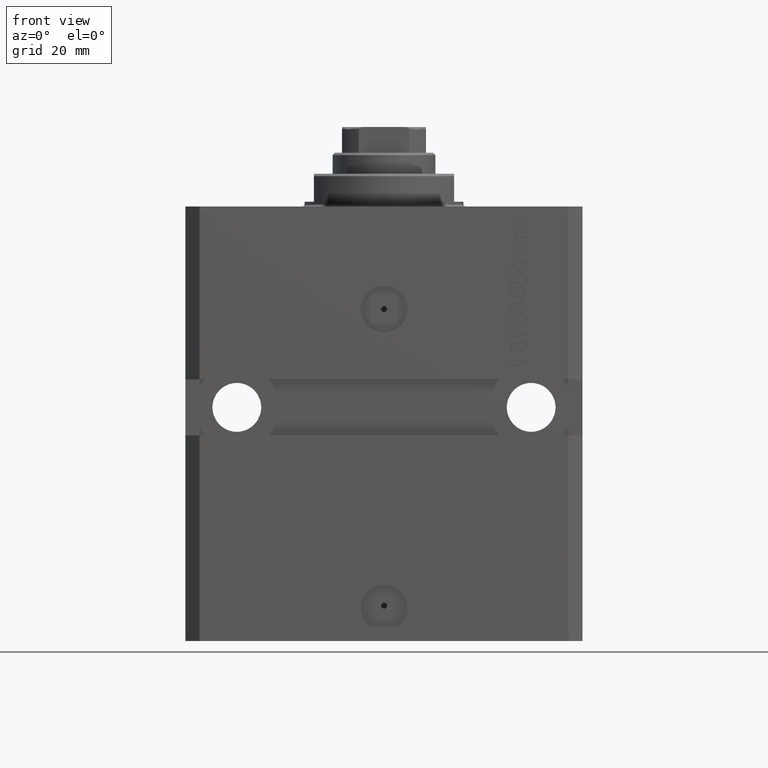
[diagram: clean part render]
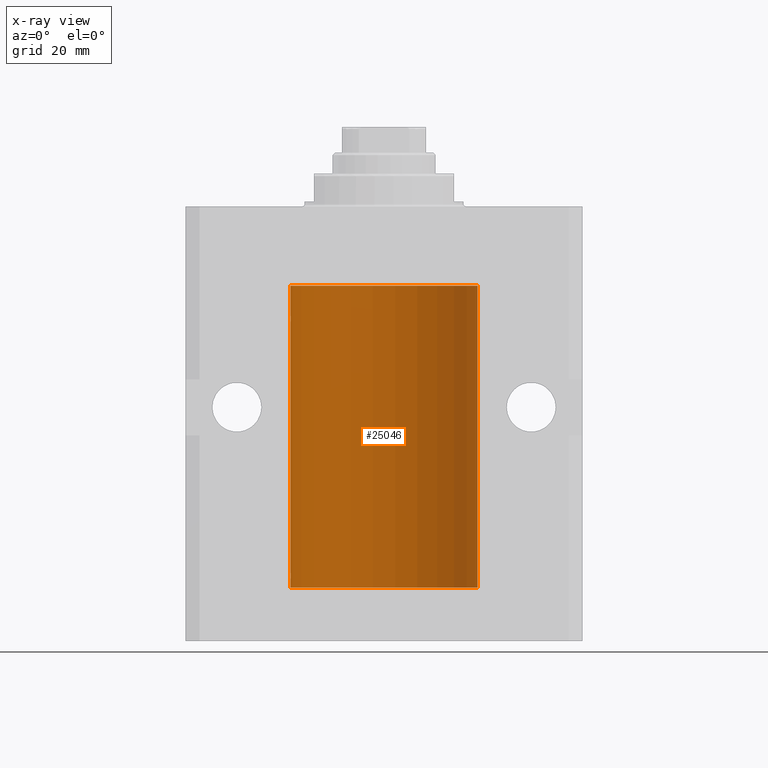
[diagram: x-ray — body ghosted, one internal face saturated and labeled with its STEP entity id]
A machine part, front view, then the same camera in x-ray: the body is ghosted and one INTERNAL B-rep face — a face not visible from any outside direction — is saturated and labeled: STEP entity #25046.
In plain terms, the highlighted cylindrical surface (partial cylindrical patch) has radius 20 mm, axis along (0, 0, 1).
Its self-contained STEP definition (entity closure, byte-faithful):
#710 = CARTESIAN_POINT ( 'NONE',  ( -20.00000000000000000, 2.449293598294706513E-15, -81.59999999999999432 ) ) ;
#1161 = CARTESIAN_POINT ( 'NONE',  ( -20.00000000000000355, 0.1631688615953343080, -79.62499999999984368 ) ) ;
#1390 = CARTESIAN_POINT ( 'NONE',  ( -19.99023018003212471, 0.6250578794725522025, -79.16284809704971792 ) ) ;
#2644 = ORIENTED_EDGE ( 'NONE', *, *, #33842, .T. ) ;
#3471 = AXIS2_PLACEMENT_3D ( 'NONE', #38524, #45975, #41667 ) ;
#3702 = CARTESIAN_POINT ( 'NONE',  ( -19.99766197842594906, 0.3150331617867667688, -23.45402070102505476 ) ) ;
#4075 = ORIENTED_EDGE ( 'NONE', *, *, #37678, .T. ) ;
#4537 = B_SPLINE_CURVE_WITH_KNOTS ( 'NONE', 3,
 ( #14771, #28986, #32116, #3702, #40510, #18157, #47028, #10215, #11146, #43662, #13828, #28756 ),
 .UNSPECIFIED., .F., .F.,
 ( 4, 2, 2, 2, 2, 4 ),
 ( 5.848927291235706941E-19, 0.0002442693137305304075, 0.0004885386274610601645, 0.0009770772549221123059, 0.001465615882383164339, 0.001954154509844215938 ),
 .UNSPECIFIED. ) ;
#4704 = CARTESIAN_POINT ( 'NONE',  ( 0.000000000000000000, 0.000000000000000000, -81.59999999999999432 ) ) ;
#4711 = ORIENTED_EDGE ( 'NONE', *, *, #10895, .F. ) ;
#4772 = VERTEX_POINT ( 'NONE', #35575 ) ;
#6116 = DIRECTION ( 'NONE',  ( 1.000000000000000000, 0.000000000000000000, 0.000000000000000000 ) ) ;
#7806 = CARTESIAN_POINT ( 'NONE',  ( -20.00000000000010303, 3.580159286679549072E-13, -79.62500000000332534 ) ) ;
#8925 = EDGE_CURVE ( 'NONE', #31922, #15326, #24655, .T. ) ;
#9018 = CYLINDRICAL_SURFACE ( 'NONE', #46293, 20.00000000000000000 ) ;
#9477 = DIRECTION ( 'NONE',  ( -0.000000000000000000, -0.000000000000000000, 1.000000000000000000 ) ) ;
#10215 = CARTESIAN_POINT ( 'NONE',  ( -19.99023018003212471, 0.6250578794725500931, -24.16284809704970371 ) ) ;
#10895 = EDGE_CURVE ( 'NONE', #33418, #22992, #20806, .T. ) ;
#11146 = CARTESIAN_POINT ( 'NONE',  ( -19.99253506710754991, 0.5587120480776751608, -24.32511620830248589 ) ) ;
#11343 = CARTESIAN_POINT ( 'NONE',  ( 20.00000000000000000, 0.000000000000000000, -81.59999999999999432 ) ) ;
#11390 = B_SPLINE_CURVE_WITH_KNOTS ( 'NONE', 3,
 ( #11489, #26190, #26661, #18963, #34349, #19441, #41327, #1390, #33642, #44947, #1161, #30730 ),
 .UNSPECIFIED., .F., .F.,
 ( 4, 2, 2, 2, 2, 4 ),
 ( 1.522880481566060999E-18, 0.0002442693137305179392, 0.0004885386274610343605, 0.0009770772549220966934, 0.001465615882383158918, 0.001954154509844221576 ),
 .UNSPECIFIED. ) ;
#11489 = CARTESIAN_POINT ( 'NONE',  ( -20.00000000000000000, -1.124177324826063808E-14, -78.37500000000000000 ) ) ;
#11925 = DIRECTION ( 'NONE',  ( 1.000000000000000000, 0.000000000000000000, 0.000000000000000000 ) ) ;
#13285 = VECTOR ( 'NONE', #24258, 1000.000000000000000 ) ;
#13518 = CARTESIAN_POINT ( 'NONE',  ( -20.00000000000000000, 2.449293598294706513E-15, -81.59999999999999432 ) ) ;
#13828 = CARTESIAN_POINT ( 'NONE',  ( -20.00000000000000000, 0.1631688615953320320, -24.62499999999985434 ) ) ;
#14438 = ORIENTED_EDGE ( 'NONE', *, *, #32610, .T. ) ;
#14542 = VERTEX_POINT ( 'NONE', #26488 ) ;
#14771 = CARTESIAN_POINT ( 'NONE',  ( -20.00000000000000000, -2.867584836844214272E-15, -23.37500000000000000 ) ) ;
#15326 = VERTEX_POINT ( 'NONE', #22401 ) ;
#15447 = VECTOR ( 'NONE', #9477, 1000.000000000000000 ) ;
#15763 = ORIENTED_EDGE ( 'NONE', *, *, #22475, .F. ) ;
#15813 = VERTEX_POINT ( 'NONE', #30642 ) ;
#17819 = VERTEX_POINT ( 'NONE', #31675 ) ;
#18157 = CARTESIAN_POINT ( 'NONE',  ( -19.99256581701871482, 0.5573276956902001311, -23.67348565770948809 ) ) ;
#18963 = CARTESIAN_POINT ( 'NONE',  ( -19.99766197842594551, 0.3150331617867603295, -78.45402070102504410 ) ) ;
#19441 = CARTESIAN_POINT ( 'NONE',  ( -19.99256581701871838, 0.5573276956901996870, -78.67348565770949165 ) ) ;
#20326 = CARTESIAN_POINT ( 'NONE',  ( -20.00000000000000000, 2.449293598294706513E-15, -81.59999999999999432 ) ) ;
#20806 = LINE ( 'NONE', #20326, #15447 ) ;
#21406 = EDGE_CURVE ( 'NONE', #4772, #15813, #41593, .T. ) ;
#22401 = CARTESIAN_POINT ( 'NONE',  ( -20.00000000000000000, 2.449293598294706513E-15, -17.00000000000000000 ) ) ;
#22475 = EDGE_CURVE ( 'NONE', #17819, #15326, #31955, .T. ) ;
#22587 = ORIENTED_EDGE ( 'NONE', *, *, #8925, .T. ) ;
#22992 = VERTEX_POINT ( 'NONE', #7806 ) ;
#23244 = FACE_OUTER_BOUND ( 'NONE', #34838, .T. ) ;
#23510 = CARTESIAN_POINT ( 'NONE',  ( 20.00000000000000000, 0.000000000000000000, -17.00000000000000000 ) ) ;
#23939 = CARTESIAN_POINT ( 'NONE',  ( 0.000000000000000000, 0.000000000000000000, -17.00000000000000000 ) ) ;
#24199 = CIRCLE ( 'NONE', #3471, 20.00000000000000000 ) ;
#24258 = DIRECTION ( 'NONE',  ( -0.000000000000000000, -0.000000000000000000, 1.000000000000000000 ) ) ;
#24655 = CIRCLE ( 'NONE', #45390, 20.00000000000000000 ) ;
#25046 = ADVANCED_FACE ( 'NONE', ( #23244 ), #9018, .F. ) ;
#25170 = VECTOR ( 'NONE', #33263, 1000.000000000000000 ) ;
#26044 = LINE ( 'NONE', #11343, #25170 ) ;
#26190 = CARTESIAN_POINT ( 'NONE',  ( -19.99999999999999289, 0.08259581631026131909, -78.37499999999998579 ) ) ;
#26488 = CARTESIAN_POINT ( 'NONE',  ( 20.00000000000000000, 0.000000000000000000, -81.59999999999999432 ) ) ;
#26661 = CARTESIAN_POINT ( 'NONE',  ( -19.99947377218718003, 0.1636439183262797525, -78.39126364004653169 ) ) ;
#27469 = ORIENTED_EDGE ( 'NONE', *, *, #21406, .F. ) ;
#28756 = CARTESIAN_POINT ( 'NONE',  ( -20.00000000000010303, 3.580159278407742946E-13, -24.62500000000332889 ) ) ;
#28986 = CARTESIAN_POINT ( 'NONE',  ( -19.99999999999999645, 0.08259581631026780002, -23.37500000000000000 ) ) ;
#30642 = CARTESIAN_POINT ( 'NONE',  ( -20.00000000000010303, 3.580159278407742946E-13, -24.62500000000332889 ) ) ;
#30730 = CARTESIAN_POINT ( 'NONE',  ( -20.00000000000010303, 3.580159286679549072E-13, -79.62500000000332534 ) ) ;
#31280 = EDGE_CURVE ( 'NONE', #14542, #33418, #24199, .T. ) ;
#31634 = DIRECTION ( 'NONE',  ( 0.000000000000000000, 0.000000000000000000, 1.000000000000000000 ) ) ;
#31675 = CARTESIAN_POINT ( 'NONE',  ( -20.00000000000000000, -2.867584836844214272E-15, -23.37500000000000000 ) ) ;
#31922 = VERTEX_POINT ( 'NONE', #23510 ) ;
#31955 = LINE ( 'NONE', #42313, #13285 ) ;
#32116 = CARTESIAN_POINT ( 'NONE',  ( -19.99947377218718714, 0.1636439183262877461, -23.39126364004656011 ) ) ;
#32610 = EDGE_CURVE ( 'NONE', #4772, #22992, #11390, .T. ) ;
#33263 = DIRECTION ( 'NONE',  ( -0.000000000000000000, -0.000000000000000000, 1.000000000000000000 ) ) ;
#33418 = VERTEX_POINT ( 'NONE', #13518 ) ;
#33642 = CARTESIAN_POINT ( 'NONE',  ( -19.99253506710754991, 0.5587120480776742726, -79.32511620830248944 ) ) ;
#33842 = EDGE_CURVE ( 'NONE', #17819, #15813, #4537, .T. ) ;
#34349 = CARTESIAN_POINT ( 'NONE',  ( -19.99638934703457238, 0.3843678041337651452, -78.50046362978099523 ) ) ;
#34838 = EDGE_LOOP ( 'NONE', ( #4711, #38903, #4075, #22587, #15763, #2644, #27469, #14438 ) ) ;
#35575 = CARTESIAN_POINT ( 'NONE',  ( -20.00000000000000000, -1.124177324826063808E-14, -78.37500000000000000 ) ) ;
#37678 = EDGE_CURVE ( 'NONE', #14542, #31922, #26044, .T. ) ;
#37984 = DIRECTION ( 'NONE',  ( -0.000000000000000000, -0.000000000000000000, 1.000000000000000000 ) ) ;
#38524 = CARTESIAN_POINT ( 'NONE',  ( 0.000000000000000000, 0.000000000000000000, -81.59999999999999432 ) ) ;
#38903 = ORIENTED_EDGE ( 'NONE', *, *, #31280, .F. ) ;
#40510 = CARTESIAN_POINT ( 'NONE',  ( -19.99638934703457593, 0.3843678041337688644, -23.50046362978100944 ) ) ;
#41327 = CARTESIAN_POINT ( 'NONE',  ( -19.99023380173166231, 0.6249420416828449509, -78.83670793056396064 ) ) ;
#41593 = LINE ( 'NONE', #710, #44754 ) ;
#41667 = DIRECTION ( 'NONE',  ( 1.000000000000000000, 0.000000000000000000, 0.000000000000000000 ) ) ;
#42313 = CARTESIAN_POINT ( 'NONE',  ( -20.00000000000000000, 2.449293598294706513E-15, -81.59999999999999432 ) ) ;
#43662 = CARTESIAN_POINT ( 'NONE',  ( -19.99769349528941120, 0.3253804398728645242, -24.55855820727680339 ) ) ;
#44754 = VECTOR ( 'NONE', #37984, 1000.000000000000000 ) ;
#44947 = CARTESIAN_POINT ( 'NONE',  ( -19.99769349528941831, 0.3253804398728615266, -79.55855820727680339 ) ) ;
#45132 = DIRECTION ( 'NONE',  ( -0.000000000000000000, -0.000000000000000000, 1.000000000000000000 ) ) ;
#45390 = AXIS2_PLACEMENT_3D ( 'NONE', #23939, #31634, #6116 ) ;
#45975 = DIRECTION ( 'NONE',  ( 0.000000000000000000, 0.000000000000000000, 1.000000000000000000 ) ) ;
#46293 = AXIS2_PLACEMENT_3D ( 'NONE', #4704, #45132, #11925 ) ;
#47028 = CARTESIAN_POINT ( 'NONE',  ( -19.99023380173166231, 0.6249420416828462832, -23.83670793056396064 ) ) ;